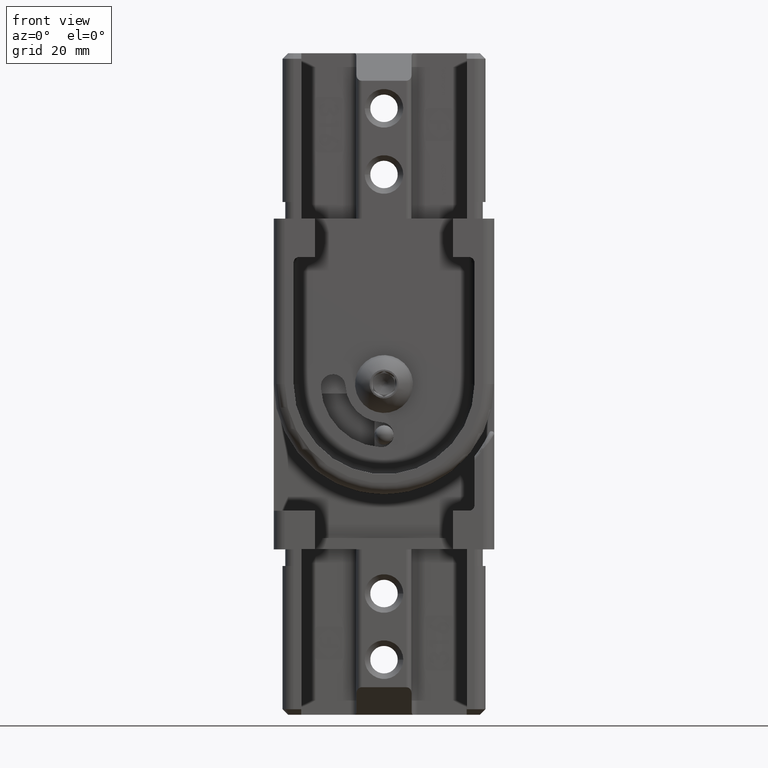
[diagram: clean part render]
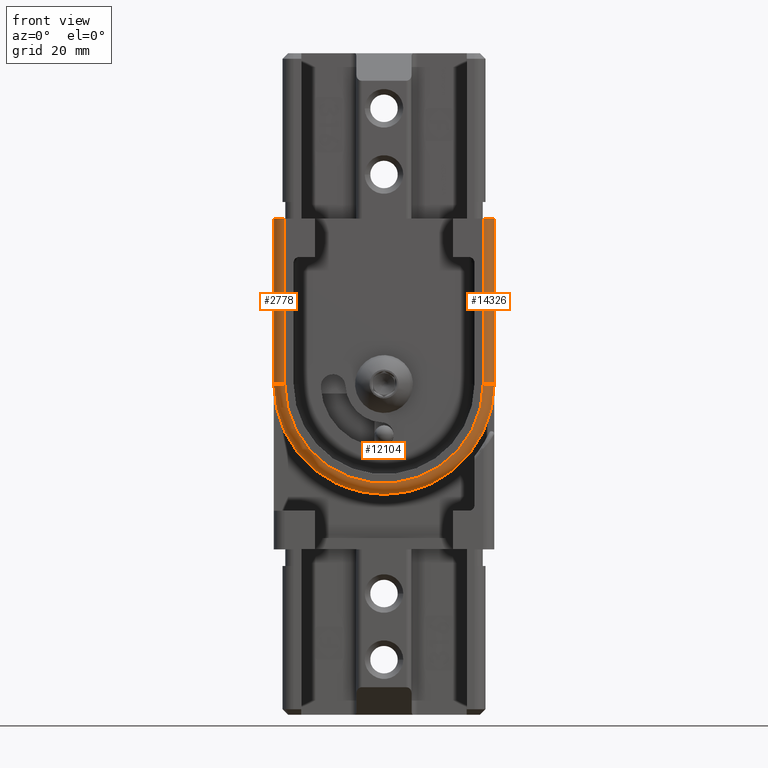
[diagram: same view with one multi-face feature highlighted, each face labeled with its STEP entity id]
A machine part, front view. The highlighted faces form ONE feature: a constant-radius fillet chain: 3 tangent blend faces with common blend radius 2 mm. The faces share edges in the B-rep.
Their STEP definitions:
[1] entity #2778 (Cylinder):
#608 = CARTESIAN_POINT ( 'NONE',  ( -20.00000000000000000, -17.99999999999999600, 6.999999999999999100 ) ) ;
#766 = LINE ( 'NONE', #23574, #22247 ) ;
#1240 = EDGE_LOOP ( 'NONE', ( #3521, #14048, #3607, #19101 ) ) ;
#1881 = CARTESIAN_POINT ( 'NONE',  ( -20.00000000000000400, -18.00000000000000400, -22.99999999999986100 ) ) ;
#2213 = CARTESIAN_POINT ( 'NONE',  ( -18.00000000000000400, -17.99999999999999600, 6.999999999999999100 ) ) ;
#2778 = ADVANCED_FACE ( 'NONE', ( #5769 ), #10006, .T. ) ;
#3430 = VECTOR ( 'NONE', #23287, 1000.000000000000000 ) ;
#3448 = DIRECTION ( 'NONE',  ( 1.000000000000000000, 0.0000000000000000000, 0.0000000000000000000 ) ) ;
#3521 = ORIENTED_EDGE ( 'NONE', *, *, #25365, .T. ) ;
#3607 = ORIENTED_EDGE ( 'NONE', *, *, #11793, .F. ) ;
#4521 = AXIS2_PLACEMENT_3D ( 'NONE', #13812, #5540, #3448 ) ;
#4623 = CARTESIAN_POINT ( 'NONE',  ( -18.00000000000000400, -19.99999999999999600, 6.999999999999999100 ) ) ;
#5540 = DIRECTION ( 'NONE',  ( -0.0000000000000000000, 0.0000000000000000000, 1.000000000000000000 ) ) ;
#5769 = FACE_OUTER_BOUND ( 'NONE', #1240, .T. ) ;
#6085 = DIRECTION ( 'NONE',  ( 1.000000000000000000, 0.0000000000000000000, 0.0000000000000000000 ) ) ;
#6290 = VERTEX_POINT ( 'NONE', #25554 ) ;
#9186 = VERTEX_POINT ( 'NONE', #4623 ) ;
#10006 = CYLINDRICAL_SURFACE ( 'NONE', #24485, 2.000000000000001800 ) ;
#10263 = CARTESIAN_POINT ( 'NONE',  ( -18.00000000000000400, -19.99999999999999600, -22.99999999999987600 ) ) ;
#11097 = DIRECTION ( 'NONE',  ( -0.0000000000000000000, -0.0000000000000000000, -1.000000000000000000 ) ) ;
#11793 = EDGE_CURVE ( 'NONE', #9186, #14205, #766, .T. ) ;
#12252 = CARTESIAN_POINT ( 'NONE',  ( -18.00000000000000400, -17.99999999999999600, 6.999999999999999100 ) ) ;
#12749 = DIRECTION ( 'NONE',  ( -0.0000000000000000000, -0.0000000000000000000, -1.000000000000000000 ) ) ;
#13382 = AXIS2_PLACEMENT_3D ( 'NONE', #12252, #26536, #6085 ) ;
#13812 = CARTESIAN_POINT ( 'NONE',  ( -18.00000000000000400, -17.99999999999999600, -23.00000000000000000 ) ) ;
#14048 = ORIENTED_EDGE ( 'NONE', *, *, #19992, .T. ) ;
#14205 = VERTEX_POINT ( 'NONE', #10263 ) ;
#15635 = CIRCLE ( 'NONE', #4521, 2.000000000000001800 ) ;
#18734 = EDGE_CURVE ( 'NONE', #6290, #9186, #25773, .T. ) ;
#19101 = ORIENTED_EDGE ( 'NONE', *, *, #18734, .F. ) ;
#19375 = LINE ( 'NONE', #608, #3430 ) ;
#19992 = EDGE_CURVE ( 'NONE', #24083, #14205, #15635, .T. ) ;
#22247 = VECTOR ( 'NONE', #11097, 1000.000000000000000 ) ;
#23039 = DIRECTION ( 'NONE',  ( -1.000000000000000000, 0.0000000000000000000, 0.0000000000000000000 ) ) ;
#23287 = DIRECTION ( 'NONE',  ( -0.0000000000000000000, -0.0000000000000000000, -1.000000000000000000 ) ) ;
#23574 = CARTESIAN_POINT ( 'NONE',  ( -18.00000000000000400, -19.99999999999999600, 6.999999999999999100 ) ) ;
#24083 = VERTEX_POINT ( 'NONE', #1881 ) ;
#24485 = AXIS2_PLACEMENT_3D ( 'NONE', #2213, #12749, #23039 ) ;
#25365 = EDGE_CURVE ( 'NONE', #6290, #24083, #19375, .T. ) ;
#25554 = CARTESIAN_POINT ( 'NONE',  ( -20.00000000000000000, -17.99999999999999600, 6.999999999999999100 ) ) ;
#25773 = CIRCLE ( 'NONE', #13382, 2.000000000000001800 ) ;
#26536 = DIRECTION ( 'NONE',  ( 0.0000000000000000000, 0.0000000000000000000, 1.000000000000000000 ) ) ;
[2] entity #12104 (Torus):
#55 = DIRECTION ( 'NONE',  ( 1.000000000000000000, 0.0000000000000000000, 0.0000000000000000000 ) ) ;
#443 = EDGE_LOOP ( 'NONE', ( #21646, #5630, #2612, #3539 ) ) ;
#542 = DIRECTION ( 'NONE',  ( 0.0000000000000000000, 0.0000000000000000000, -1.000000000000000000 ) ) ;
#1881 = CARTESIAN_POINT ( 'NONE',  ( -20.00000000000000400, -18.00000000000000400, -22.99999999999986100 ) ) ;
#2405 = VERTEX_POINT ( 'NONE', #10517 ) ;
#2612 = ORIENTED_EDGE ( 'NONE', *, *, #5177, .T. ) ;
#2812 = DIRECTION ( 'NONE',  ( 0.0000000000000000000, -1.000000000000000000, 0.0000000000000000000 ) ) ;
#3448 = DIRECTION ( 'NONE',  ( 1.000000000000000000, 0.0000000000000000000, 0.0000000000000000000 ) ) ;
#3539 = ORIENTED_EDGE ( 'NONE', *, *, #8156, .F. ) ;
#3921 = CIRCLE ( 'NONE', #18567, 18.00000000000000400 ) ;
#4362 = DIRECTION ( 'NONE',  ( 0.0000000000000000000, -1.000000000000000000, 0.0000000000000000000 ) ) ;
#4521 = AXIS2_PLACEMENT_3D ( 'NONE', #13812, #5540, #3448 ) ;
#5177 = EDGE_CURVE ( 'NONE', #24083, #2405, #7340, .T. ) ;
#5540 = DIRECTION ( 'NONE',  ( -0.0000000000000000000, 0.0000000000000000000, 1.000000000000000000 ) ) ;
#5630 = ORIENTED_EDGE ( 'NONE', *, *, #19992, .F. ) ;
#6002 = CARTESIAN_POINT ( 'NONE',  ( 18.00000000000000400, -19.99999999999999600, -23.00000000000000000 ) ) ;
#6949 = VERTEX_POINT ( 'NONE', #6002 ) ;
#7340 = CIRCLE ( 'NONE', #10763, 20.00000000000000400 ) ;
#8077 = CIRCLE ( 'NONE', #17247, 2.000000000000001800 ) ;
#8156 = EDGE_CURVE ( 'NONE', #6949, #2405, #8077, .T. ) ;
#8713 = CARTESIAN_POINT ( 'NONE',  ( 0.0000000000000000000, -18.00000000000000400, -23.00000000000000000 ) ) ;
#10263 = CARTESIAN_POINT ( 'NONE',  ( -18.00000000000000400, -19.99999999999999600, -22.99999999999987600 ) ) ;
#10517 = CARTESIAN_POINT ( 'NONE',  ( 20.00000000000000400, -18.00000000000000400, -23.00000000000000000 ) ) ;
#10763 = AXIS2_PLACEMENT_3D ( 'NONE', #8713, #14874, #21163 ) ;
#12104 = ADVANCED_FACE ( 'NONE', ( #15060 ), #26137, .T. ) ;
#12517 = CARTESIAN_POINT ( 'NONE',  ( 18.00000000000000400, -18.00000000000000000, -23.00000000000000000 ) ) ;
#13812 = CARTESIAN_POINT ( 'NONE',  ( -18.00000000000000400, -17.99999999999999600, -23.00000000000000000 ) ) ;
#14205 = VERTEX_POINT ( 'NONE', #10263 ) ;
#14874 = DIRECTION ( 'NONE',  ( 0.0000000000000000000, -1.000000000000000000, 0.0000000000000000000 ) ) ;
#15060 = FACE_OUTER_BOUND ( 'NONE', #443, .T. ) ;
#15244 = CARTESIAN_POINT ( 'NONE',  ( 0.0000000000000000000, -19.99999999999999600, -23.00000000000000000 ) ) ;
#15247 = EDGE_CURVE ( 'NONE', #14205, #6949, #3921, .T. ) ;
#15635 = CIRCLE ( 'NONE', #4521, 2.000000000000001800 ) ;
#17247 = AXIS2_PLACEMENT_3D ( 'NONE', #12517, #22704, #55 ) ;
#17746 = CARTESIAN_POINT ( 'NONE',  ( 0.0000000000000000000, -18.00000000000000000, -23.00000000000000000 ) ) ;
#18567 = AXIS2_PLACEMENT_3D ( 'NONE', #15244, #2812, #542 ) ;
#19992 = EDGE_CURVE ( 'NONE', #24083, #14205, #15635, .T. ) ;
#20134 = DIRECTION ( 'NONE',  ( 0.0000000000000000000, 0.0000000000000000000, -1.000000000000000000 ) ) ;
#21163 = DIRECTION ( 'NONE',  ( 0.0000000000000000000, 0.0000000000000000000, -1.000000000000000000 ) ) ;
#21646 = ORIENTED_EDGE ( 'NONE', *, *, #15247, .F. ) ;
#22203 = AXIS2_PLACEMENT_3D ( 'NONE', #17746, #4362, #20134 ) ;
#22704 = DIRECTION ( 'NONE',  ( -0.0000000000000000000, 0.0000000000000000000, 1.000000000000000000 ) ) ;
#24083 = VERTEX_POINT ( 'NONE', #1881 ) ;
#26137 = TOROIDAL_SURFACE ( 'NONE', #22203, 18.00000000000000400, 2.000000000000000000 ) ;
[3] entity #14326 (Cylinder):
#55 = DIRECTION ( 'NONE',  ( 1.000000000000000000, 0.0000000000000000000, 0.0000000000000000000 ) ) ;
#339 = DIRECTION ( 'NONE',  ( -1.000000000000000000, 0.0000000000000000000, 0.0000000000000000000 ) ) ;
#561 = ORIENTED_EDGE ( 'NONE', *, *, #19123, .T. ) ;
#2405 = VERTEX_POINT ( 'NONE', #10517 ) ;
#2559 = ORIENTED_EDGE ( 'NONE', *, *, #20343, .F. ) ;
#2725 = VERTEX_POINT ( 'NONE', #8015 ) ;
#4972 = EDGE_LOOP ( 'NONE', ( #561, #11478, #18583, #2559 ) ) ;
#5233 = DIRECTION ( 'NONE',  ( -0.0000000000000000000, -0.0000000000000000000, -1.000000000000000000 ) ) ;
#6002 = CARTESIAN_POINT ( 'NONE',  ( 18.00000000000000400, -19.99999999999999600, -23.00000000000000000 ) ) ;
#6273 = VECTOR ( 'NONE', #5233, 1000.000000000000000 ) ;
#6881 = CARTESIAN_POINT ( 'NONE',  ( 18.00000000000000400, -18.00000000000000000, 6.999999999999999100 ) ) ;
#6949 = VERTEX_POINT ( 'NONE', #6002 ) ;
#8015 = CARTESIAN_POINT ( 'NONE',  ( 20.00000000000000400, -18.00000000000000000, 6.999999999999999100 ) ) ;
#8077 = CIRCLE ( 'NONE', #17247, 2.000000000000001800 ) ;
#8156 = EDGE_CURVE ( 'NONE', #6949, #2405, #8077, .T. ) ;
#9082 = DIRECTION ( 'NONE',  ( -0.0000000000000000000, -0.0000000000000000000, -1.000000000000000000 ) ) ;
#10517 = CARTESIAN_POINT ( 'NONE',  ( 20.00000000000000400, -18.00000000000000400, -23.00000000000000000 ) ) ;
#10691 = VECTOR ( 'NONE', #9082, 1000.000000000000000 ) ;
#11478 = ORIENTED_EDGE ( 'NONE', *, *, #8156, .T. ) ;
#12359 = AXIS2_PLACEMENT_3D ( 'NONE', #26513, #14426, #18324 ) ;
#12517 = CARTESIAN_POINT ( 'NONE',  ( 18.00000000000000400, -18.00000000000000000, -23.00000000000000000 ) ) ;
#12719 = CIRCLE ( 'NONE', #12359, 2.000000000000001800 ) ;
#14326 = ADVANCED_FACE ( 'NONE', ( #26416 ), #21859, .T. ) ;
#14426 = DIRECTION ( 'NONE',  ( 0.0000000000000000000, 0.0000000000000000000, 1.000000000000000000 ) ) ;
#14706 = LINE ( 'NONE', #26065, #6273 ) ;
#14899 = LINE ( 'NONE', #20710, #10691 ) ;
#15773 = AXIS2_PLACEMENT_3D ( 'NONE', #6881, #25524, #339 ) ;
#16461 = VERTEX_POINT ( 'NONE', #26937 ) ;
#17247 = AXIS2_PLACEMENT_3D ( 'NONE', #12517, #22704, #55 ) ;
#18324 = DIRECTION ( 'NONE',  ( -1.000000000000000000, 0.0000000000000000000, 0.0000000000000000000 ) ) ;
#18583 = ORIENTED_EDGE ( 'NONE', *, *, #23612, .F. ) ;
#19123 = EDGE_CURVE ( 'NONE', #16461, #6949, #14706, .T. ) ;
#20343 = EDGE_CURVE ( 'NONE', #16461, #2725, #12719, .T. ) ;
#20710 = CARTESIAN_POINT ( 'NONE',  ( 20.00000000000000400, -18.00000000000000000, 6.999999999999999100 ) ) ;
#21859 = CYLINDRICAL_SURFACE ( 'NONE', #15773, 2.000000000000001800 ) ;
#22704 = DIRECTION ( 'NONE',  ( -0.0000000000000000000, 0.0000000000000000000, 1.000000000000000000 ) ) ;
#23612 = EDGE_CURVE ( 'NONE', #2725, #2405, #14899, .T. ) ;
#25524 = DIRECTION ( 'NONE',  ( -0.0000000000000000000, -0.0000000000000000000, -1.000000000000000000 ) ) ;
#26065 = CARTESIAN_POINT ( 'NONE',  ( 18.00000000000000400, -20.00000000000000000, 6.999999999999999100 ) ) ;
#26416 = FACE_OUTER_BOUND ( 'NONE', #4972, .T. ) ;
#26513 = CARTESIAN_POINT ( 'NONE',  ( 18.00000000000000400, -18.00000000000000000, 6.999999999999999100 ) ) ;
#26937 = CARTESIAN_POINT ( 'NONE',  ( 18.00000000000000400, -20.00000000000000000, 6.999999999999999100 ) ) ;